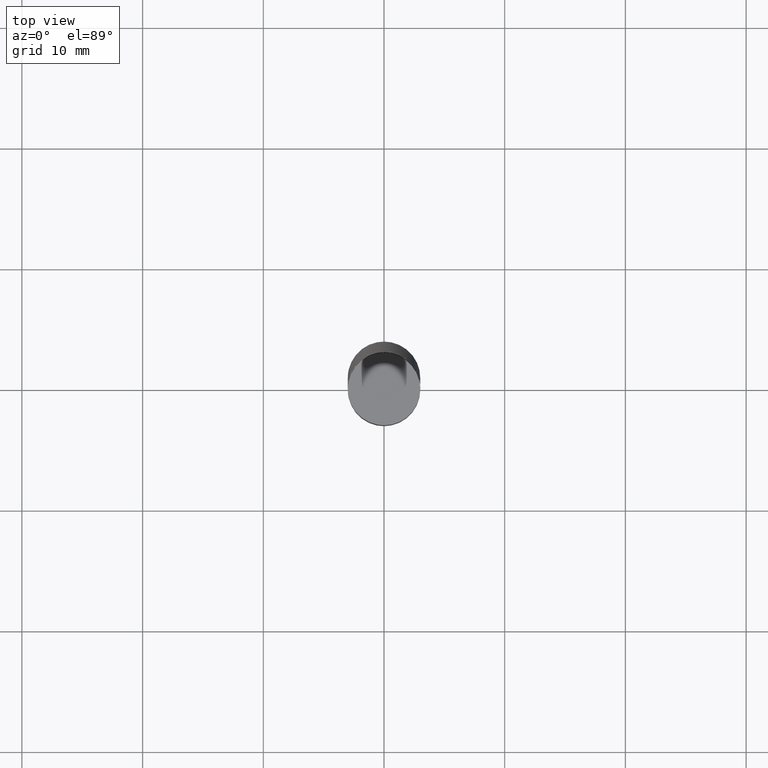
[diagram: clean part render]
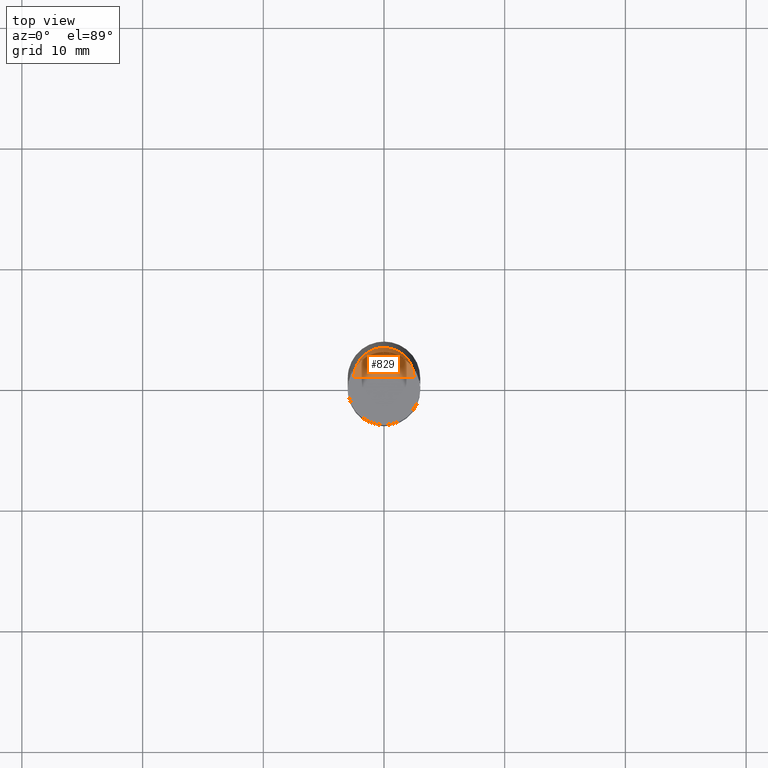
[diagram: same view with one face highlighted and labeled with its STEP entity id]
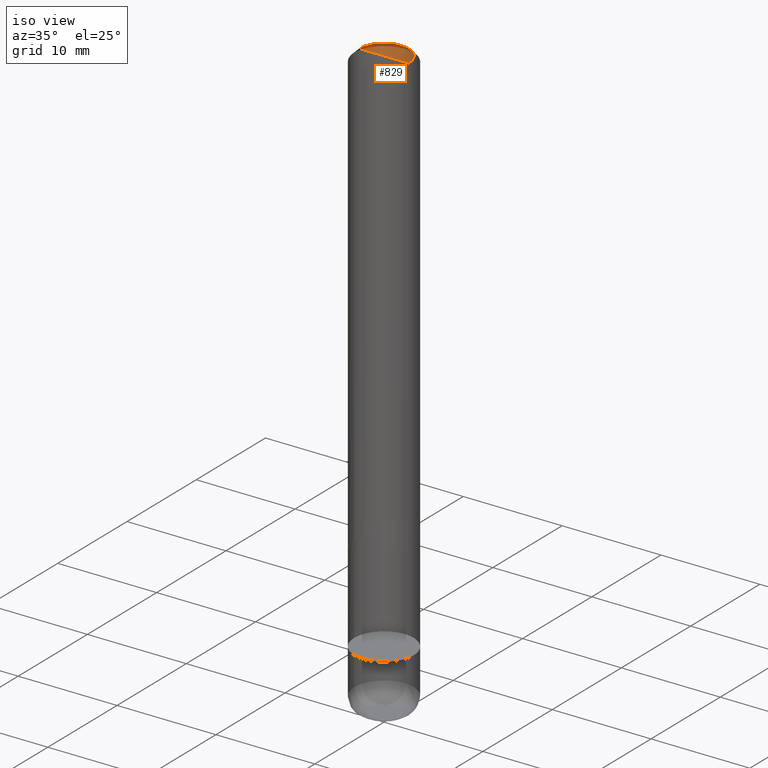
[diagram: same view with one face highlighted and labeled with its STEP entity id]
A machine part, top view. The second image highlights one B-rep face of the part: STEP entity #829.
A second angle (iso view) of the same face is appended — the face is thin or edge-on in the first view.
In plain terms, the highlighted face is a freeform B-spline surface patch.
Its self-contained STEP definition (entity closure, byte-faithful):
#568=CARTESIAN_POINT('',(2.5,0.0,45.0));
#569=CARTESIAN_POINT('',(2.5,2.5,45.0));
#570=CARTESIAN_POINT('',(0.0,2.5,45.0));
#571=CARTESIAN_POINT('',(-2.5,2.5,45.0));
#572=CARTESIAN_POINT('',(-2.5,0.0,45.0));
#573=CARTESIAN_POINT('',(0.0,0.0,45.0));
#814=(
BOUNDED_SURFACE()
B_SPLINE_SURFACE(1,2,(
(#568,#569,#570,#571,#572),
(#573,#573,#573,#573,#573)
), .UNSPECIFIED.,.F.,.F.,.F.)
B_SPLINE_SURFACE_WITH_KNOTS((2,2),(3,2,3),(
0.0,1.0),(
0.0,0.5,1.0), .UNSPECIFIED.)
GEOMETRIC_REPRESENTATION_ITEM()
RATIONAL_B_SPLINE_SURFACE(((1.0,0.707106781187,1.0,0.707106781187,1.0),
(1.0,0.707106781187,1.0,0.707106781187,1.0)
))
REPRESENTATION_ITEM('')
SURFACE()
);
#815=(
BOUNDED_CURVE()
B_SPLINE_CURVE(1,(#573,#568),.UNSPECIFIED.,.F.,.F.)
B_SPLINE_CURVE_WITH_KNOTS((2,2),
(0.0,1.0),.UNSPECIFIED.)
CURVE()
GEOMETRIC_REPRESENTATION_ITEM()
RATIONAL_B_SPLINE_CURVE((1.0,1.0))
REPRESENTATION_ITEM('')
);
#816=(
BOUNDED_CURVE()
B_SPLINE_CURVE(2,(#568,#569,#570,#571,#572),.UNSPECIFIED.,.F.,.F.)
B_SPLINE_CURVE_WITH_KNOTS((3,2,3),
(0.0,0.5,1.0),.UNSPECIFIED.)
CURVE()
GEOMETRIC_REPRESENTATION_ITEM()
RATIONAL_B_SPLINE_CURVE((1.0,0.707106781187,1.0,0.707106781187,1.0))
REPRESENTATION_ITEM('')
);
#817=(
BOUNDED_CURVE()
B_SPLINE_CURVE(1,(#572,#573),.UNSPECIFIED.,.F.,.F.)
B_SPLINE_CURVE_WITH_KNOTS((2,2),
(0.0,1.0),.UNSPECIFIED.)
CURVE()
GEOMETRIC_REPRESENTATION_ITEM()
RATIONAL_B_SPLINE_CURVE((1.0,1.0))
REPRESENTATION_ITEM('')
);
#818=VERTEX_POINT('',#568);
#819=VERTEX_POINT('',#572);
#820=VERTEX_POINT('',#573);
#821=EDGE_CURVE('',#820,#818,#815,.T.);
#822=EDGE_CURVE('',#818,#819,#816,.T.);
#823=EDGE_CURVE('',#819,#820,#817,.T.);
#824=ORIENTED_EDGE('',*,*,#821,.T.);
#825=ORIENTED_EDGE('',*,*,#822,.T.);
#826=ORIENTED_EDGE('',*,*,#823,.T.);
#827=EDGE_LOOP('',(#824,#825,#826));
#828=FACE_OUTER_BOUND('',#827,.T.);
#829=ADVANCED_FACE('',(#828),#814,.T.);